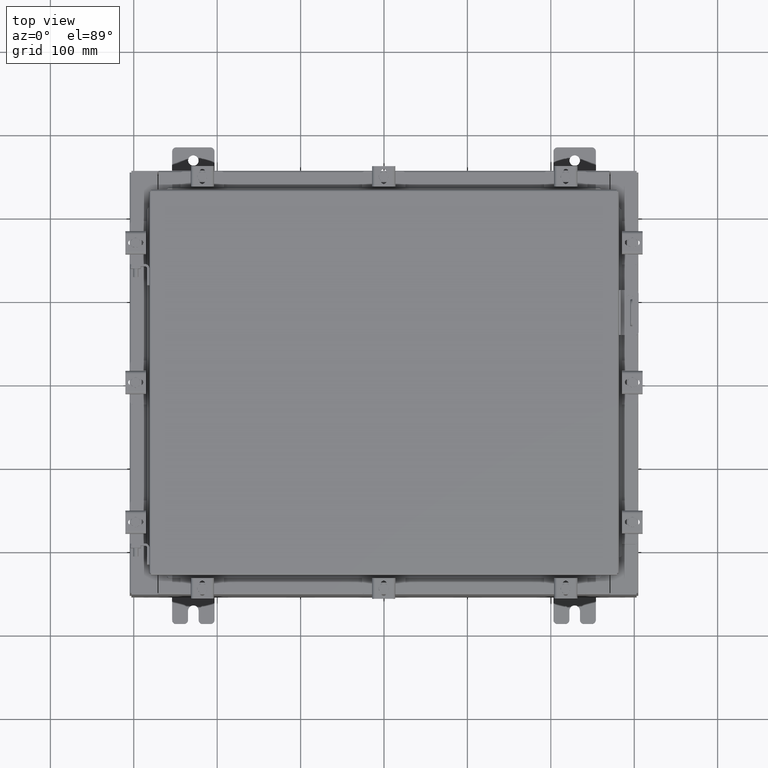
[diagram: clean part render]
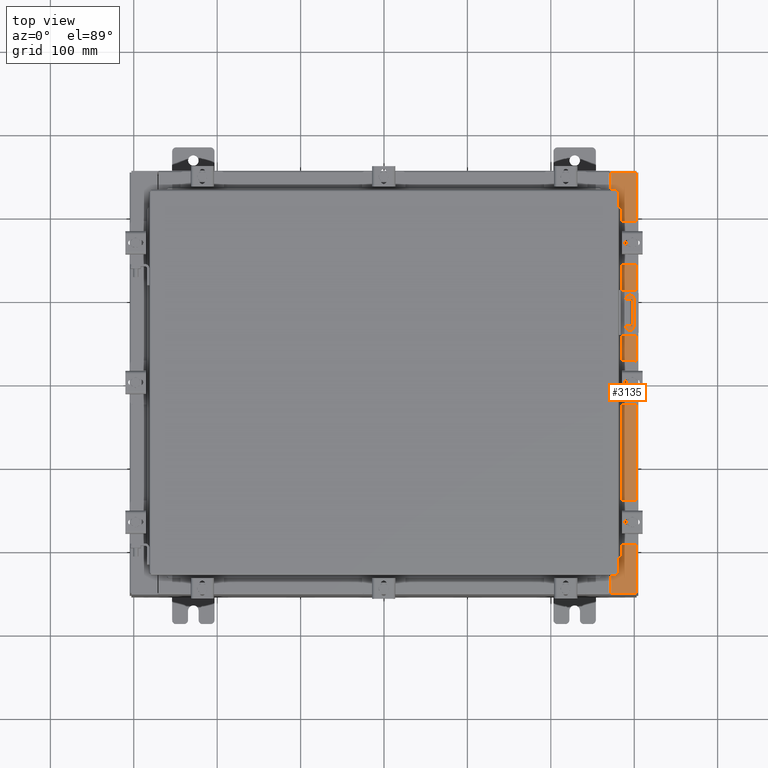
[diagram: same view with one face highlighted and labeled with its STEP entity id]
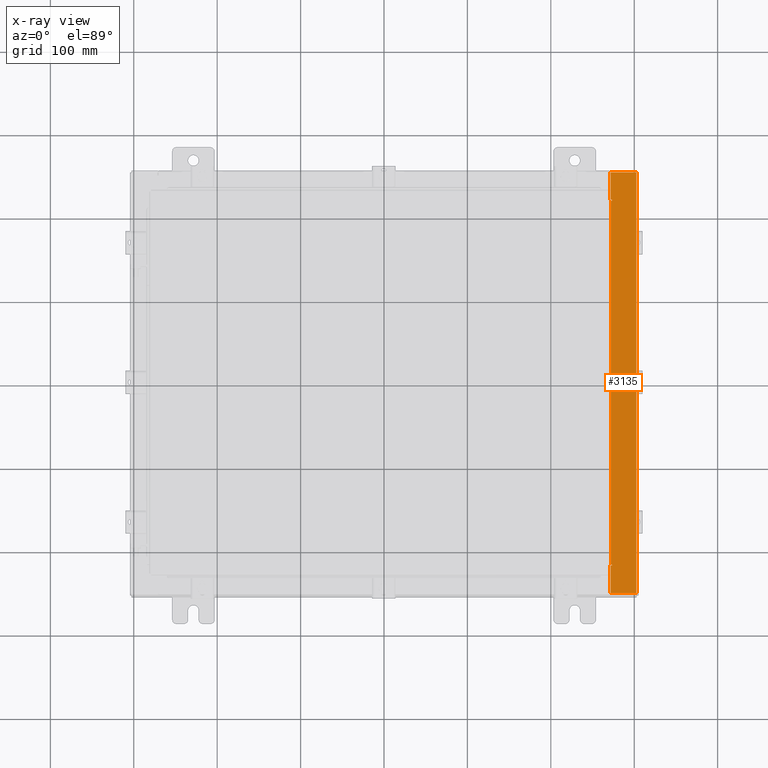
[diagram: x-ray of the same camera — body ghosted, the highlighted face saturated]
A machine part, top view. The second image highlights one B-rep face of the part: STEP entity #3135.
The next image is the same camera in x-ray: the body ghosted, the highlighted face saturated — about 0% of this face is hidden behind the body in this view.
In plain terms, the highlighted planar face has unit normal (-0, 0, -1).
Its self-contained STEP definition (entity closure, byte-faithful):
#197 = CARTESIAN_POINT ( 'NONE',  ( 10.69970000000002800, -8.631100000000003500, 7.925300000000008900 ) ) ;
#291 = DIRECTION ( 'NONE',  ( 1.000000000000000000, 0.0000000000000000000, 0.0000000000000000000 ) ) ;
#865 = ORIENTED_EDGE ( 'NONE', *, *, #16231, .F. ) ;
#1329 = VERTEX_POINT ( 'NONE', #12052 ) ;
#1453 = CARTESIAN_POINT ( 'NONE',  ( 5.679009539018295300E-014, 9.925299999999996500, 7.925300000000085300 ) ) ;
#1509 = DIRECTION ( 'NONE',  ( 1.000000000000000000, 0.0000000000000000000, 0.0000000000000000000 ) ) ;
#2029 = VECTOR ( 'NONE', #21946, 39.37007874015748100 ) ;
#2220 = ORIENTED_EDGE ( 'NONE', *, *, #16799, .F. ) ;
#2984 = VERTEX_POINT ( 'NONE', #197 ) ;
#3135 = ADVANCED_FACE ( 'NONE', ( #16847 ), #4821, .F. ) ;
#3287 = DIRECTION ( 'NONE',  ( -1.000000000000000000, 0.0000000000000000000, 7.132762385546384700E-015 ) ) ;
#3518 = AXIS2_PLACEMENT_3D ( 'NONE', #10238, #17335, #1509 ) ;
#3637 = ORIENTED_EDGE ( 'NONE', *, *, #13877, .F. ) ;
#3954 = LINE ( 'NONE', #9831, #2029 ) ;
#3969 = LINE ( 'NONE', #1453, #13242 ) ;
#4331 = CARTESIAN_POINT ( 'NONE',  ( 10.75005000000003000, 8.631099999999996400, 7.925300000000009800 ) ) ;
#4561 = CARTESIAN_POINT ( 'NONE',  ( 5.679009539018295300E-014, -9.925300000000001800, 7.925300000000085300 ) ) ;
#4821 = PLANE ( 'NONE',  #18587 ) ;
#5090 = VECTOR ( 'NONE', #21189, 39.37007874015748100 ) ;
#5478 = AXIS2_PLACEMENT_3D ( 'NONE', #21148, #10814, #291 ) ;
#6140 = CARTESIAN_POINT ( 'NONE',  ( 10.75005000000003000, -8.593750000000003600, 7.925300000000008900 ) ) ;
#6414 = EDGE_LOOP ( 'NONE', ( #12274, #10774, #21875, #9181, #11478, #15952, #17613, #22498, #3637, #2220, #865, #17726 ) ) ;
#6456 = LINE ( 'NONE', #17570, #9987 ) ;
#6512 = VERTEX_POINT ( 'NONE', #6140 ) ;
#6594 = DIRECTION ( 'NONE',  ( -7.132762385546384700E-015, 0.0000000000000000000, -1.000000000000000000 ) ) ;
#6863 = CARTESIAN_POINT ( 'NONE',  ( 10.75005000000003000, -8.631100000000003500, 7.925300000000008900 ) ) ;
#7108 = EDGE_CURVE ( 'NONE', #2984, #10853, #17418, .T. ) ;
#7561 = EDGE_CURVE ( 'NONE', #1329, #8190, #3969, .T. ) ;
#7646 = VECTOR ( 'NONE', #21454, 39.37007874015748100 ) ;
#7771 = EDGE_CURVE ( 'NONE', #18254, #6512, #8886, .T. ) ;
#8190 = VERTEX_POINT ( 'NONE', #14358 ) ;
#8245 = CARTESIAN_POINT ( 'NONE',  ( 10.75005000000003000, -8.593750000000003600, 7.925300000000009800 ) ) ;
#8762 = VECTOR ( 'NONE', #11265, 39.37007874015748100 ) ;
#8886 = CIRCLE ( 'NONE', #3518, 0.01867499999999949400 ) ;
#8942 = VECTOR ( 'NONE', #19342, 39.37007874015748100 ) ;
#8975 = CARTESIAN_POINT ( 'NONE',  ( 10.71270000000003000, 8.593749999999996400, 7.925300000000009800 ) ) ;
#9176 = LINE ( 'NONE', #8245, #17834 ) ;
#9181 = ORIENTED_EDGE ( 'NONE', *, *, #16439, .F. ) ;
#9618 = CARTESIAN_POINT ( 'NONE',  ( 10.71270000000003000, 8.593749999999996400, 7.925300000000009800 ) ) ;
#9640 = EDGE_CURVE ( 'NONE', #8190, #10660, #9939, .T. ) ;
#9831 = CARTESIAN_POINT ( 'NONE',  ( 10.71270000000003000, -8.593750000000003600, 7.925300000000009800 ) ) ;
#9939 = LINE ( 'NONE', #15522, #14519 ) ;
#9987 = VECTOR ( 'NONE', #19293, 39.37007874015748100 ) ;
#10073 = CARTESIAN_POINT ( 'NONE',  ( 10.69970000000003000, -9.925300000000001800, 7.925300000000008900 ) ) ;
#10238 = CARTESIAN_POINT ( 'NONE',  ( 10.75005000000003000, -8.612425000000001800, 7.925300000000009800 ) ) ;
#10660 = VERTEX_POINT ( 'NONE', #16090 ) ;
#10774 = ORIENTED_EDGE ( 'NONE', *, *, #7108, .T. ) ;
#10814 = DIRECTION ( 'NONE',  ( 7.132762385546384700E-015, 0.0000000000000000000, 1.000000000000000000 ) ) ;
#10853 = VERTEX_POINT ( 'NONE', #10073 ) ;
#11265 = DIRECTION ( 'NONE',  ( -1.000000000000000000, 2.170286390199955400E-014, -2.170286390199955400E-014 ) ) ;
#11414 = EDGE_CURVE ( 'NONE', #11800, #10660, #13459, .T. ) ;
#11478 = ORIENTED_EDGE ( 'NONE', *, *, #7561, .T. ) ;
#11800 = VERTEX_POINT ( 'NONE', #18400 ) ;
#11867 = VERTEX_POINT ( 'NONE', #9618 ) ;
#12052 = CARTESIAN_POINT ( 'NONE',  ( 11.91230000000002700, 9.925299999999991100, 7.925300000000000000 ) ) ;
#12141 = EDGE_CURVE ( 'NONE', #16836, #11800, #18204, .T. ) ;
#12274 = ORIENTED_EDGE ( 'NONE', *, *, #14637, .F. ) ;
#12581 = CARTESIAN_POINT ( 'NONE',  ( 10.69970000000002800, -8.631100000000003500, 7.925300000000008900 ) ) ;
#12726 = CARTESIAN_POINT ( 'NONE',  ( 10.71270000000003000, -8.593750000000003600, 7.925300000000009800 ) ) ;
#12847 = CARTESIAN_POINT ( 'NONE',  ( 10.69970000000002800, 1.177997802698536000E-015, 7.925300000000008900 ) ) ;
#13242 = VECTOR ( 'NONE', #3287, 39.37007874015748100 ) ;
#13459 = LINE ( 'NONE', #4331, #8762 ) ;
#13524 = EDGE_CURVE ( 'NONE', #10853, #20439, #18977, .T. ) ;
#13859 = DIRECTION ( 'NONE',  ( 1.100963394019027800E-016, -1.000000000000000000, -7.852910284722405000E-031 ) ) ;
#13877 = EDGE_CURVE ( 'NONE', #11867, #16836, #18145, .T. ) ;
#14358 = CARTESIAN_POINT ( 'NONE',  ( 10.69970000000002800, 9.925299999999992900, 7.925300000000008900 ) ) ;
#14375 = VECTOR ( 'NONE', #20176, 39.37007874015748100 ) ;
#14519 = VECTOR ( 'NONE', #13859, 39.37007874015748100 ) ;
#14637 = EDGE_CURVE ( 'NONE', #2984, #18254, #18936, .T. ) ;
#15213 = DIRECTION ( 'NONE',  ( -1.000000000000000000, 0.0000000000000000000, 0.0000000000000000000 ) ) ;
#15522 = CARTESIAN_POINT ( 'NONE',  ( 10.69970000000002800, 1.177997802698536000E-015, 7.925300000000008900 ) ) ;
#15952 = ORIENTED_EDGE ( 'NONE', *, *, #9640, .T. ) ;
#16090 = CARTESIAN_POINT ( 'NONE',  ( 10.69970000000002800, 8.631099999999996400, 7.925300000000008900 ) ) ;
#16231 = EDGE_CURVE ( 'NONE', #6512, #16592, #9176, .T. ) ;
#16439 = EDGE_CURVE ( 'NONE', #1329, #20439, #6456, .T. ) ;
#16592 = VERTEX_POINT ( 'NONE', #12726 ) ;
#16799 = EDGE_CURVE ( 'NONE', #16592, #11867, #3954, .T. ) ;
#16836 = VERTEX_POINT ( 'NONE', #22010 ) ;
#16847 = FACE_OUTER_BOUND ( 'NONE', #6414, .T. ) ;
#16973 = CARTESIAN_POINT ( 'NONE',  ( 5.679009539018295300E-014, 0.0000000000000000000, 7.925300000000085300 ) ) ;
#17335 = DIRECTION ( 'NONE',  ( 7.132762385546384700E-015, 0.0000000000000000000, 1.000000000000000000 ) ) ;
#17418 = LINE ( 'NONE', #12847, #7646 ) ;
#17570 = CARTESIAN_POINT ( 'NONE',  ( 11.91230000000002700, -9.925300000000001800, 7.925300000000000000 ) ) ;
#17613 = ORIENTED_EDGE ( 'NONE', *, *, #11414, .F. ) ;
#17726 = ORIENTED_EDGE ( 'NONE', *, *, #7771, .F. ) ;
#17834 = VECTOR ( 'NONE', #15213, 39.37007874015748100 ) ;
#17844 = CARTESIAN_POINT ( 'NONE',  ( 11.91230000000002700, -9.925300000000001800, 7.925300000000000000 ) ) ;
#18145 = LINE ( 'NONE', #8975, #8942 ) ;
#18204 = CIRCLE ( 'NONE', #5478, 0.01867499999999949400 ) ;
#18254 = VERTEX_POINT ( 'NONE', #6863 ) ;
#18400 = CARTESIAN_POINT ( 'NONE',  ( 10.75005000000003000, 8.631099999999996400, 7.925300000000008900 ) ) ;
#18587 = AXIS2_PLACEMENT_3D ( 'NONE', #16973, #6594, #18714 ) ;
#18714 = DIRECTION ( 'NONE',  ( -1.000000000000000000, 0.0000000000000000000, 7.132762385546384700E-015 ) ) ;
#18936 = LINE ( 'NONE', #12581, #5090 ) ;
#18977 = LINE ( 'NONE', #4561, #14375 ) ;
#19293 = DIRECTION ( 'NONE',  ( -0.0000000000000000000, -1.000000000000000000, -0.0000000000000000000 ) ) ;
#19342 = DIRECTION ( 'NONE',  ( 1.000000000000000000, 0.0000000000000000000, 0.0000000000000000000 ) ) ;
#20176 = DIRECTION ( 'NONE',  ( 1.000000000000000000, 0.0000000000000000000, -7.132762385546384700E-015 ) ) ;
#20439 = VERTEX_POINT ( 'NONE', #17844 ) ;
#21148 = CARTESIAN_POINT ( 'NONE',  ( 10.75005000000003000, 8.612424999999996400, 7.925300000000009800 ) ) ;
#21189 = DIRECTION ( 'NONE',  ( 1.000000000000000000, 2.170286390199955400E-014, 2.170286390199955400E-014 ) ) ;
#21454 = DIRECTION ( 'NONE',  ( 1.100963394019027800E-016, -1.000000000000000000, -7.852910284722405000E-031 ) ) ;
#21875 = ORIENTED_EDGE ( 'NONE', *, *, #13524, .T. ) ;
#21946 = DIRECTION ( 'NONE',  ( -0.0000000000000000000, 1.000000000000000000, -0.0000000000000000000 ) ) ;
#22010 = CARTESIAN_POINT ( 'NONE',  ( 10.75005000000003000, 8.593749999999994700, 7.925300000000008900 ) ) ;
#22498 = ORIENTED_EDGE ( 'NONE', *, *, #12141, .F. ) ;